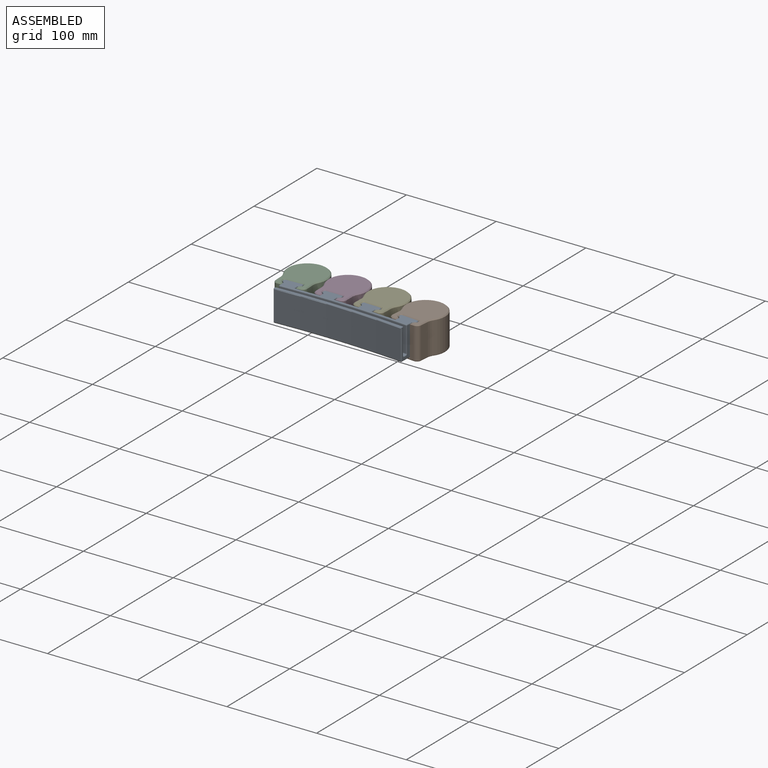
[diagram: assembled view]
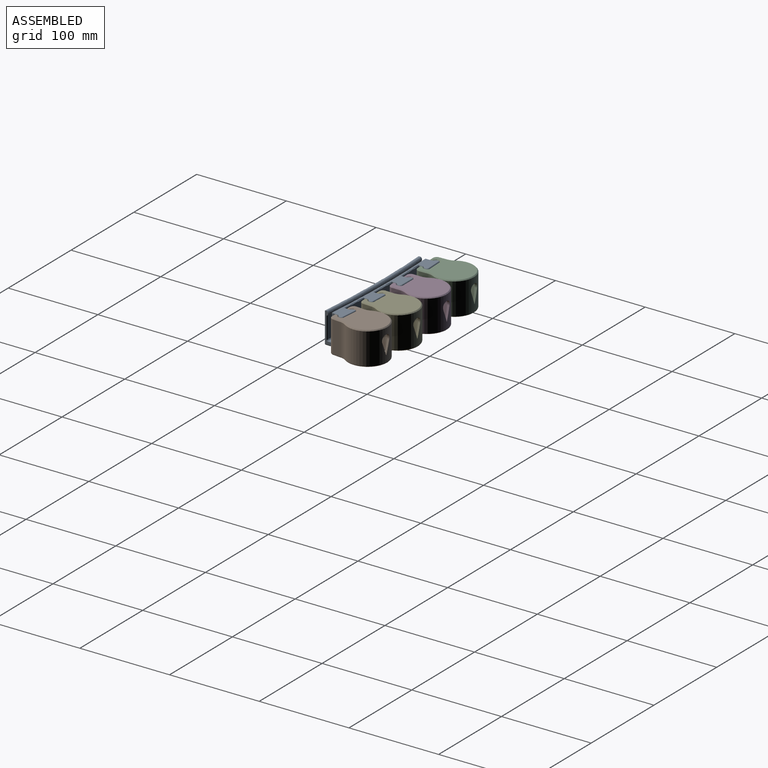
[diagram: assembled view, second angle]
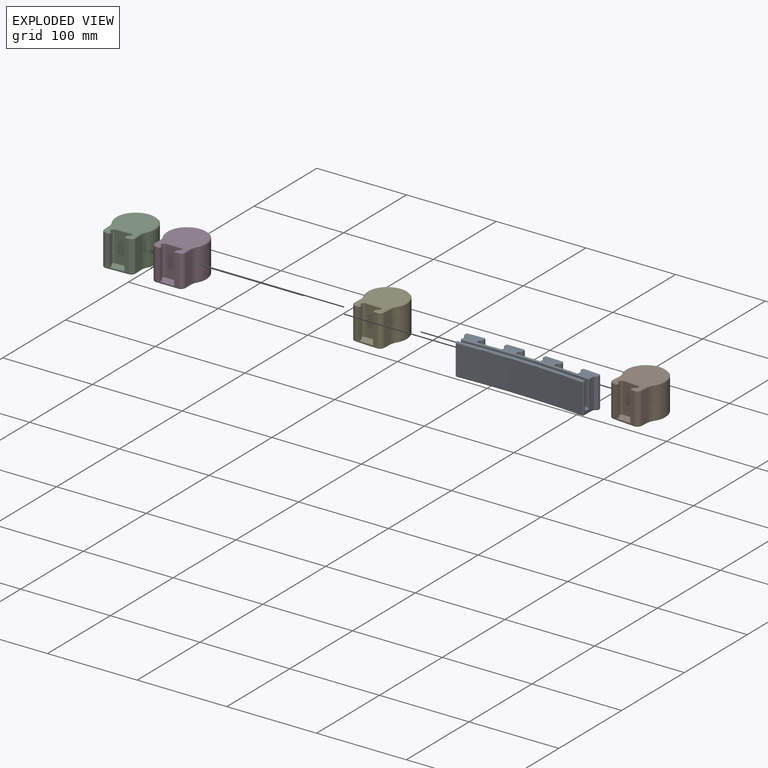
[diagram: exploded view]
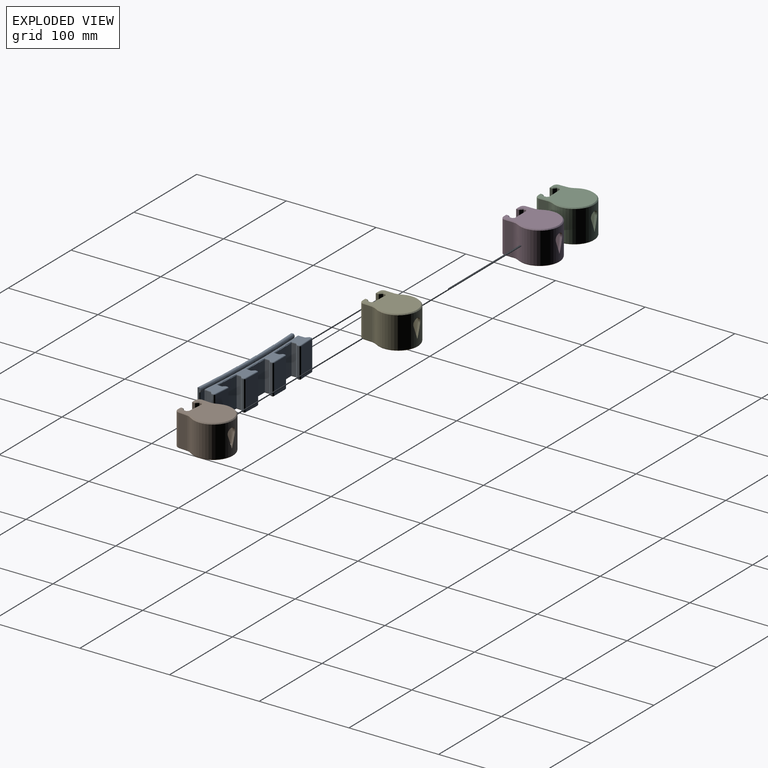
[diagram: exploded view, second angle]
ASSEMBLY  parts=5 mates=4
PART A: 151 faces, bbox 152x25.1x35 mm
  f0: cylinder r=1019mm len=33mm, axis (0,0,-1), area 916.9mm2, adj f33,f41,f91,f147
  f1: cylinder r=1019mm len=33mm, axis (0,0,-1), area 918.5mm2, adj f14,f42,f71,f127
  f2: cylinder r=1019mm len=33mm, axis (0,0,-1), area 918.5mm2, adj f24,f32,f72,f128
  f3: plane 143x5.53mm, normal (0,0,1), area 429.4mm2, adj f93,f97,f98,f99
  f4: plane 34x9.95mm, normal (1,0,0), area 125.4mm2, adj f10,f12,f13,f15,f51,f92,f95,f97
  f5: plane 34x9.95mm, normal (-1,0,0), area 129.7mm2, adj f10,f13,f23,f52,f94,f96,f99,f101
  f6: cylinder r=1008mm len=142.86mm, axis (0,0,-1), area 4718.3mm2, adj f50,f148,f149,f150
  f7: plane 149.93x22.96mm, normal (0,0,-1), area 1985.7mm2, adj f50,f51,f52,f53,f54,f55,f56,f57
  f8: cylinder r=1016mm len=142.86mm, axis (0,0,-1), area 4003.4mm2, adj f98,f102,f103,f104
  f9: plane 149.93x14.94mm, normal (0,0,1), area 840.8mm2, adj f103,f107,f108,f109,f110,f111,f112,f113
  f10: plane 145.02x4.63mm, normal (0,0,1), area 290.2mm2, adj f4,f5,f13,f148,f149,f150
  f11: cylinder r=1011mm len=143.14mm, axis (0,0,-1), area 3473.1mm2, adj f13,f92,f93,f94
  f12: plane 4.76x1.28mm, normal (0.99,-0.14,0), area 4.4mm2, adj f4,f13
  f13: bspline ~146.72x6.45mm, area 820.3mm2, adj f4,f5,f10,f11,f12,f92,f94
  f14: plane 33x4.99mm, normal (-1,0.06,0), area 165mm2, adj f1,f22,f69,f125
  f15: plane 33x4.99mm, normal (1,-0.06,0), area 165mm2, adj f4,f16,f53,f109
  f16: plane 33x3.01mm, normal (0.66,-0.75,0), area 132.2mm2, adj f15,f17,f55,f111
  f17: plane 33x2.61mm, normal (1,-0.06,0), area 86.3mm2, adj f16,f18,f57,f113
  f18: plane 33x1.11mm, normal (0.75,0.66,0), area 48.6mm2, adj f17,f19,f59,f115
  f19: plane 33x18.96mm, normal (0.06,1,0), area 627mm2, adj f18,f20,f61,f117
  f20: plane 33x1.11mm, normal (-0.66,0.75,0), area 48.6mm2, adj f19,f21,f63,f119
  f21: plane 33x2.61mm, normal (-1,0.06,0), area 86.3mm2, adj f20,f22,f65,f121
  f22: plane 33x3.01mm, normal (-0.75,-0.66,0), area 132.2mm2, adj f14,f21,f67,f123
  f23: plane 33x4.99mm, normal (-1,-0.06,0), area 165mm2, adj f5,f31,f54,f110
  f24: plane 33x4.99mm, normal (1,0.06,0), area 165mm2, adj f2,f25,f70,f126
  f25: plane 33x3.01mm, normal (0.75,-0.66,0), area 132.2mm2, adj f24,f26,f68,f124
  f26: plane 33x2.61mm, normal (1,0.06,0), area 86.3mm2, adj f25,f27,f66,f122
  f27: plane 33x1.11mm, normal (0.66,0.75,0), area 48.6mm2, adj f26,f28,f64,f120
  f28: plane 33x18.96mm, normal (-0.06,1,0), area 627mm2, adj f27,f29,f62,f118
  f29: plane 33x1.11mm, normal (-0.75,0.66,0), area 48.6mm2, adj f28,f30,f60,f116
  f30: plane 33x2.61mm, normal (-1,-0.06,0), area 86.3mm2, adj f29,f31,f58,f114
  f31: plane 33x3.01mm, normal (-0.66,-0.75,0), area 132.2mm2, adj f23,f30,f56,f112
  f32: plane 33x5mm, normal (-1,-0.02,0), area 165mm2, adj f2,f40,f74,f130
  f33: plane 33x5mm, normal (1,0.02,0), area 165mm2, adj f0,f34,f90,f146
  f34: plane 33x2.89mm, normal (0.72,-0.69,0), area 132.2mm2, adj f33,f35,f88,f144
  f35: plane 33x2.62mm, normal (1,0.02,0), area 86.3mm2, adj f34,f36,f86,f142
  f36: plane 33x1.06mm, normal (0.69,0.72,0), area 48.6mm2, adj f35,f37,f84,f140
  f37: plane 33x19mm, normal (-0.02,1,0), area 627mm2, adj f36,f38,f82,f138
  f38: plane 33x1.06mm, normal (-0.72,0.69,0), area 48.6mm2, adj f37,f39,f80,f136
  f39: plane 33x2.62mm, normal (-1,-0.02,0), area 86.3mm2, adj f38,f40,f78,f134
  f40: plane 33x2.89mm, normal (-0.69,-0.72,0), area 132.2mm2, adj f32,f39,f76,f132
  f41: plane 33x5mm, normal (-1,0.02,0), area 165mm2, adj f0,f49,f89,f145
  f42: plane 33x5mm, normal (1,-0.02,0), area 165mm2, adj f1,f43,f73,f129
  f43: plane 33x2.89mm, normal (0.69,-0.72,0), area 132.2mm2, adj f42,f44,f75,f131
  f44: plane 33x2.62mm, normal (1,-0.02,0), area 86.3mm2, adj f43,f45,f77,f133
  f45: plane 33x1.06mm, normal (0.72,0.69,0), area 48.6mm2, adj f44,f46,f79,f135
  f46: plane 33x19mm, normal (0.02,1,0), area 627mm2, adj f45,f47,f81,f137
  f47: plane 33x1.06mm, normal (-0.69,0.72,0), area 48.6mm2, adj f46,f48,f83,f139
  f48: plane 33x2.62mm, normal (-1,0.02,0), area 86.3mm2, adj f47,f49,f85,f141
  f49: plane 33x2.89mm, normal (-0.72,-0.69,0), area 132.2mm2, adj f41,f48,f87,f143
  f50: cone r=1009mm half-angle=45deg, axis (0,0,-1), area 203.5mm2, adj f6,f7,f51,f52,f148,f149
  f51: plane 10.72x1mm, normal (0.71,0,-0.71), area 14.7mm2, adj f4,f7,f50,f53,f148
  f52: plane 10.72x1mm, normal (-0.71,0,-0.71), area 14.7mm2, adj f5,f7,f50,f54,f149
  f53: plane 5.47x1.32mm, normal (0.71,-0.04,-0.71), area 7.4mm2, adj f7,f15,f51,f55
  f54: plane 5.47x1.32mm, normal (-0.71,-0.04,-0.71), area 7.4mm2, adj f7,f23,f52,f56
  f55: plane 3.98x3.12mm, normal (0.47,-0.53,-0.71), area 5.7mm2, adj f7,f16,f53,f57
  f56: plane 3.98x3.12mm, normal (-0.47,-0.53,-0.71), area 5.7mm2, adj f7,f31,f54,f58
  f57: plane 2.61x1.14mm, normal (0.71,-0.04,-0.71), area 3.1mm2, adj f7,f17,f55,f59
  f58: plane 2.61x1.14mm, normal (-0.71,-0.04,-0.71), area 3.1mm2, adj f7,f30,f56,f60
  f59: plane 1.46x1.45mm, normal (0.53,0.47,-0.71), area 1.5mm2, adj f7,f18,f57,f61
  f60: plane 1.46x1.45mm, normal (-0.53,0.47,-0.71), area 1.5mm2, adj f7,f29,f58,f62
  f61: plane 18.96x2.18mm, normal (0.04,0.71,-0.71), area 26.3mm2, adj f7,f19,f59,f63
  f62: plane 18.96x2.18mm, normal (-0.04,0.71,-0.71), area 26.3mm2, adj f7,f28,f60,f64
  f63: plane 1.46x1.45mm, normal (-0.47,0.53,-0.71), area 1.5mm2, adj f7,f20,f61,f65
  f64: plane 1.46x1.45mm, normal (0.47,0.53,-0.71), area 1.5mm2, adj f7,f27,f62,f66
  f65: plane 2.61x1.14mm, normal (-0.71,0.04,-0.71), area 3.1mm2, adj f7,f21,f63,f67
  f66: plane 2.61x1.14mm, normal (0.71,0.04,-0.71), area 3.1mm2, adj f7,f26,f64,f68
  f67: plane 3.67x3.36mm, normal (-0.53,-0.47,-0.71), area 5.7mm2, adj f7,f22,f65,f69
  f68: plane 3.67x3.36mm, normal (0.53,-0.47,-0.71), area 5.7mm2, adj f7,f25,f66,f70
  f69: plane 6.39x1.34mm, normal (-0.71,0.04,-0.71), area 8.1mm2, adj f7,f14,f67,f71
  f70: plane 6.39x1.34mm, normal (0.71,0.04,-0.71), area 8.1mm2, adj f7,f24,f68,f72
  f71: cone r=1019mm half-angle=45deg, axis (0,0,1), area 40.7mm2, adj f1,f7,f69,f73
  f72: cone r=1019mm half-angle=45deg, axis (0,0,1), area 40.7mm2, adj f2,f7,f70,f74
  f73: plane 6.41x1.13mm, normal (0.71,-0.01,-0.71), area 8.1mm2, adj f7,f42,f71,f75
  f74: plane 6.41x1.13mm, normal (-0.71,-0.01,-0.71), area 8.1mm2, adj f7,f32,f72,f76
  f75: plane 3.88x3.21mm, normal (0.49,-0.51,-0.71), area 5.7mm2, adj f7,f43,f73,f77
  f76: plane 3.88x3.21mm, normal (-0.49,-0.51,-0.71), area 5.7mm2, adj f7,f40,f74,f78
  f77: plane 2.62x1.05mm, normal (0.71,-0.01,-0.71), area 3.1mm2, adj f7,f44,f75,f79
  f78: plane 2.62x1.05mm, normal (-0.71,-0.01,-0.71), area 3.1mm2, adj f7,f39,f76,f80
  f79: plane 1.46x1.45mm, normal (0.51,0.49,-0.71), area 1.5mm2, adj f7,f45,f77,f81
  f80: plane 1.46x1.45mm, normal (-0.51,0.49,-0.71), area 1.5mm2, adj f7,f38,f78,f82
  f81: plane 19x1.39mm, normal (0.01,0.71,-0.71), area 26.3mm2, adj f7,f46,f79,f83
  f82: plane 19x1.39mm, normal (-0.01,0.71,-0.71), area 26.3mm2, adj f7,f37,f80,f84
  f83: plane 1.46x1.45mm, normal (-0.49,0.51,-0.71), area 1.5mm2, adj f7,f47,f81,f85
  f84: plane 1.46x1.45mm, normal (0.49,0.51,-0.71), area 1.5mm2, adj f7,f36,f82,f86
  f85: plane 2.62x1.05mm, normal (-0.71,0.01,-0.71), area 3.1mm2, adj f7,f48,f83,f87
  f86: plane 2.62x1.05mm, normal (0.71,0.01,-0.71), area 3.1mm2, adj f7,f35,f84,f88
  f87: plane 3.78x3.28mm, normal (-0.51,-0.49,-0.71), area 5.7mm2, adj f7,f49,f85,f89
  f88: plane 3.78x3.28mm, normal (0.51,-0.49,-0.71), area 5.7mm2, adj f7,f34,f86,f90
  f89: plane 6.41x1.11mm, normal (-0.71,0.01,-0.71), area 8.1mm2, adj f7,f41,f87,f91
  f90: plane 6.41x1.11mm, normal (0.71,0.01,-0.71), area 8.1mm2, adj f7,f33,f88,f91
  f91: cone r=1019mm half-angle=45deg, axis (0,0,1), area 40.7mm2, adj f0,f7,f89,f90
  f92: cylinder r=1mm len=24.24mm, axis (0,0,-1), area 36mm2, adj f4,f11,f13,f95
  f93: torus R=1012mm, axis (0,0,1), area 225mm2, adj f3,f11,f95,f96
  f94: cylinder r=1mm len=24.24mm, axis (0,0,-1), area 36mm2, adj f5,f11,f13,f96
  f95: bspline ~2.46x2.35mm, area 3.3mm2, adj f4,f92,f93,f97
  f96: bspline ~2.45x2.35mm, area 3.3mm2, adj f5,f93,f94,f99
  f97: cylinder r=1mm len=3.01mm, axis (0,-1,0), area 4.7mm2, adj f3,f4,f95,f100
  f98: torus R=1015mm, axis (0,0,1), area 224.7mm2, adj f3,f8,f100,f101
  f99: cylinder r=1mm len=3.01mm, axis (0,1,0), area 4.7mm2, adj f3,f5,f96,f101
  f100: bspline ~2.45x2.35mm, area 3.4mm2, adj f4,f97,f98,f102
  f101: bspline ~2.46x2.35mm, area 3.4mm2, adj f5,f98,f99,f104
  f102: cylinder r=1mm len=28mm, axis (0,0,-1), area 46mm2, adj f4,f8,f100,f105
  f103: torus R=1017mm, axis (0,0,1), area 224.7mm2, adj f8,f9,f105,f106
  f104: cylinder r=1mm len=28mm, axis (0,0,-1), area 46mm2, adj f5,f8,f101,f106
  f105: sphere r=1mm, area 1.6mm2, adj f102,f103,f107
  f106: sphere r=1mm, area 1.6mm2, adj f103,f104,f108
  f107: cylinder r=1mm len=1.97mm, axis (0,-1,0), area 3.1mm2, adj f4,f9,f105,f109
  f108: cylinder r=1mm len=1.97mm, axis (0,1,0), area 3.1mm2, adj f5,f9,f106,f110
  f109: cylinder r=1mm len=5.5mm, axis (-0.06,-1,0), area 8.1mm2, adj f9,f15,f107,f111
  f110: cylinder r=1mm len=5.5mm, axis (-0.06,1,0), area 8.1mm2, adj f9,f23,f108,f112
  f111: cylinder r=1mm len=3.98mm, axis (-0.75,-0.66,0), area 6.3mm2, adj f9,f16,f109,f113
  f112: cylinder r=1mm len=3.98mm, axis (-0.75,0.66,0), area 6.3mm2, adj f9,f31,f110,f114
  f113: cylinder r=1mm len=2.67mm, axis (-0.06,-1,0), area 3.6mm2, adj f9,f17,f111,f115
  f114: cylinder r=1mm len=2.67mm, axis (-0.06,1,0), area 3.6mm2, adj f9,f30,f112,f116
  f115: cylinder r=1mm len=1.77mm, axis (0.66,-0.75,0), area 1.8mm2, adj f9,f18,f113,f117
  f116: cylinder r=1mm len=1.77mm, axis (0.66,0.75,0), area 1.8mm2, adj f9,f29,f114,f118
  f117: cylinder r=1mm len=19.02mm, axis (1,-0.06,0), area 29.4mm2, adj f9,f19,f115,f119
  f118: cylinder r=1mm len=19.02mm, axis (1,0.06,0), area 29.4mm2, adj f9,f28,f116,f120
  f119: cylinder r=1mm len=1.77mm, axis (0.75,0.66,0), area 1.8mm2, adj f9,f20,f117,f121
  f120: cylinder r=1mm len=1.77mm, axis (0.75,-0.66,0), area 1.8mm2, adj f9,f27,f118,f122
  f121: cylinder r=1mm len=2.67mm, axis (0.06,1,0), area 3.6mm2, adj f9,f21,f119,f123
  f122: cylinder r=1mm len=2.67mm, axis (0.06,-1,0), area 3.6mm2, adj f9,f26,f120,f124
  f123: cylinder r=1mm len=3.98mm, axis (-0.66,0.75,0), area 6.3mm2, adj f9,f22,f121,f125
  f124: cylinder r=1mm len=3.98mm, axis (-0.66,-0.75,0), area 6.3mm2, adj f9,f25,f122,f126
  f125: cylinder r=1mm len=6.46mm, axis (0.06,1,0), area 8.7mm2, adj f9,f14,f123,f127
  f126: cylinder r=1mm len=6.46mm, axis (0.06,-1,0), area 8.7mm2, adj f9,f24,f124,f128
  f127: torus R=1018mm, axis (0,0,1), area 44.8mm2, adj f1,f9,f125,f129
  f128: torus R=1018mm, axis (0,0,1), area 44.8mm2, adj f2,f9,f126,f130
  f129: cylinder r=1mm len=6.43mm, axis (-0.02,-1,0), area 8.7mm2, adj f9,f42,f127,f131
  f130: cylinder r=1mm len=6.43mm, axis (-0.02,1,0), area 8.7mm2, adj f9,f32,f128,f132
  f131: cylinder r=1mm len=3.88mm, axis (-0.72,-0.69,0), area 6.3mm2, adj f9,f43,f129,f133
  f132: cylinder r=1mm len=3.88mm, axis (-0.72,0.69,0), area 6.3mm2, adj f9,f40,f130,f134
  f133: cylinder r=1mm len=2.64mm, axis (-0.02,-1,0), area 3.6mm2, adj f9,f44,f131,f135
  f134: cylinder r=1mm len=2.64mm, axis (-0.02,1,0), area 3.6mm2, adj f9,f39,f132,f136
  f135: cylinder r=1mm len=1.76mm, axis (0.69,-0.72,0), area 1.8mm2, adj f9,f45,f133,f137
  f136: cylinder r=1mm len=1.76mm, axis (0.69,0.72,0), area 1.8mm2, adj f9,f38,f134,f138
  f137: cylinder r=1mm len=19.02mm, axis (1,-0.02,0), area 29.4mm2, adj f9,f46,f135,f139
  f138: cylinder r=1mm len=19.02mm, axis (1,0.02,0), area 29.4mm2, adj f9,f37,f136,f140
  f139: cylinder r=1mm len=1.76mm, axis (0.72,0.69,0), area 1.8mm2, adj f9,f47,f137,f141
  f140: cylinder r=1mm len=1.76mm, axis (0.72,-0.69,0), area 1.8mm2, adj f9,f36,f138,f142
  f141: cylinder r=1mm len=2.64mm, axis (0.02,1,0), area 3.6mm2, adj f9,f48,f139,f143
  f142: cylinder r=1mm len=2.64mm, axis (0.02,-1,0), area 3.6mm2, adj f9,f35,f140,f144
  f143: cylinder r=1mm len=3.88mm, axis (-0.69,0.72,0), area 6.3mm2, adj f9,f49,f141,f145
  f144: cylinder r=1mm len=3.88mm, axis (-0.69,-0.72,0), area 6.3mm2, adj f9,f34,f142,f146
  f145: cylinder r=1mm len=6.43mm, axis (0.02,1,0), area 8.7mm2, adj f9,f41,f143,f147
  f146: cylinder r=1mm len=6.43mm, axis (0.02,-1,0), area 8.7mm2, adj f9,f33,f144,f147
  f147: torus R=1018mm, axis (0,0,1), area 44.8mm2, adj f0,f9,f145,f146
  f148: cylinder r=1mm len=34.32mm, axis (0,0,-1), area 55.4mm2, adj f4,f6,f10,f50,f51,f150
  f149: cylinder r=1mm len=34.32mm, axis (0,0,-1), area 55.4mm2, adj f5,f6,f10,f50,f52,f150
  f150: torus R=1009mm, axis (0,0,1), area 226.7mm2, adj f6,f10,f148,f149
PART B: 83 faces, bbox 47.8x56.2x37.1 mm
  f0: cylinder r=22.05mm len=44.1mm, axis (0,0,-1), area 3085.4mm2, adj f8,f9,f48,f71,f79,f80,f81,f82
  f1: cone r=19.05mm half-angle=2deg, axis (0,0,1), area 3477.8mm2, adj f21,f22,f50,f51,f52,f54,f55,f56
  f2: plane 35.01x18.84mm, normal (0,0,1), area 373.9mm2, adj f44,f45,f46,f47,f49,f50,f51,f52
  f3: plane 24.76x8.62mm, normal (0,1,0), area 202.8mm2, adj f28,f30,f31,f34,f35,f40
  f4: plane 51.92x42.1mm, normal (0,0,-1), area 1563.6mm2, adj f61,f62,f63,f64,f65,f66,f67,f68
  f5: plane 35x7.82mm, normal (-1,0,0), area 273.5mm2, adj f8,f45,f57,f75
  f6: plane 35x7.82mm, normal (1,0,0), area 273.5mm2, adj f9,f46,f59,f67
  f7: plane 35x24.53mm, normal (0,-1,0), area 314.1mm2, adj f10,f12,f13,f44,f57,f59,f63,f78
  f8: cylinder r=15mm len=35mm, axis (0,0,1), area 298.5mm2, adj f0,f5,f47,f73
  f9: cylinder r=15mm len=35mm, axis (0,0,-1), area 298.5mm2, adj f0,f6,f49,f69
  f10: plane 21.68x10.26mm, normal (0,0,-1), area 194mm2, adj f7,f11,f12,f13,f14,f15,f16,f17
  f11: plane 34x2.83mm, normal (0.71,0.71,0), area 136.2mm2, adj f10,f12,f18,f74
  f12: plane 34x3.35mm, normal (1,0,0), area 113.8mm2, adj f7,f10,f11,f76
  f13: plane 34x3.35mm, normal (-1,0,0), area 113.8mm2, adj f7,f10,f14,f61
  f14: plane 34x2.83mm, normal (-0.71,0.71,0), area 136.2mm2, adj f10,f13,f15,f62
  f15: plane 34x2.86mm, normal (-1,0,0), area 97.4mm2, adj f10,f14,f16,f64
  f16: plane 34x1.22mm, normal (-0.71,-0.71,0), area 58.5mm2, adj f10,f15,f17,f66
  f17: plane 34x19.25mm, normal (0,-1,0), area 654.4mm2, adj f10,f16,f19,f68
  f18: plane 34x2.86mm, normal (1,0,0), area 97.4mm2, adj f10,f11,f19,f72
  f19: plane 34x1.22mm, normal (0.71,-0.71,0), area 58.5mm2, adj f10,f17,f18,f70
  f20: plane 36.17x35.93mm, normal (0,0,1), area 1017.9mm2, adj f38,f40,f42,f54,f55,f56
  f21: plane 33.01x2.64mm, normal (-1,0,0), area 66.4mm2, adj f1,f23,f52,f56
  f22: plane 33.01x2.64mm, normal (1,0,0), area 66.4mm2, adj f1,f23,f51,f54
  f23: plane 33.99x14.05mm, normal (0,1,0), area 477.1mm2, adj f21,f22,f39,f41,f43,f53,f54,f56
  f24: plane 28.04x1.35mm, normal (-1,0,0.02), area 20.8mm2, adj f25,f34,f35,f36,f37,f39,f41
  f25: plane 29x10.62mm, normal (0,-1,0), area 292.9mm2, adj f24,f26,f27,f33,f37,f41
  f26: plane 28.04x1.35mm, normal (1,0,0.02), area 20.8mm2, adj f25,f30,f31,f32,f33,f41,f43
  f27: plane 7.64x0.84mm, normal (0,0,1), area 6.4mm2, adj f25,f29,f33,f37
  f28: cylinder r=3.71mm len=7.74mm, axis (-1,0,0), area 26.4mm2, adj f3,f29,f31,f35
  f29: cylinder r=1.4mm len=7.65mm, axis (-1,0,0), area 13.4mm2, adj f27,f28,f32,f36
  f30: cylinder r=1mm len=25.16mm, axis (-0.02,0,1), area 39.2mm2, adj f3,f26,f31,f42
  f31: bspline ~3.59x1.66mm, area 5mm2, adj f3,f26,f28,f30,f32
  f32: bspline ~1.33x1.26mm, area 2mm2, adj f26,f29,f31,f33
  f33: cylinder r=1mm len=1mm, axis (0,1,0), area 1.3mm2, adj f25,f26,f27,f32
  f34: cylinder r=1mm len=25.16mm, axis (0.02,0,1), area 39.2mm2, adj f3,f24,f35,f38
  f35: bspline ~3.59x1.66mm, area 5mm2, adj f3,f24,f28,f34,f36
  f36: bspline ~1.33x1.26mm, area 2mm2, adj f24,f29,f35,f37
  f37: cylinder r=1mm len=1mm, axis (0,1,0), area 1.3mm2, adj f24,f25,f27,f36
  f38: bspline ~2.35x2.35mm, area 3.3mm2, adj f20,f34,f39,f40,f54
  f39: cylinder r=1mm len=1.5mm, axis (0,-1,0), area 1.4mm2, adj f23,f24,f38,f41,f54
  f40: cylinder r=1mm len=8.62mm, axis (-1,0,0), area 13.5mm2, adj f3,f20,f38,f42
  f41: cylinder r=1mm len=12.24mm, axis (1,0,0), area 15.4mm2, adj f23,f24,f25,f26,f39,f43
  f42: bspline ~2.35x2.35mm, area 3.3mm2, adj f20,f30,f40,f43,f56
  f43: cylinder r=1mm len=1.5mm, axis (0,-1,0), area 1.4mm2, adj f23,f26,f41,f42,f56
  f44: cylinder r=1mm len=24.53mm, axis (-1,0,0), area 38.5mm2, adj f2,f7,f58,f60
  f45: cylinder r=1mm len=7.82mm, axis (0,1,0), area 12.3mm2, adj f2,f5,f47,f58
  f46: cylinder r=1mm len=7.82mm, axis (0,-1,0), area 12.3mm2, adj f2,f6,f49,f60
  f47: torus R=16mm, axis (0,0,1), area 13.6mm2, adj f2,f8,f45,f48,f50
  f48: torus R=21.05mm, axis (0,0,1), area 133.8mm2, adj f0,f47,f49,f50
  f49: torus R=16mm, axis (0,0,1), area 13.6mm2, adj f2,f9,f46,f48,f50
  f50: torus R=21.24mm, axis (0,0,1), area 166.9mm2, adj f1,f2,f47,f48,f49,f51,f52
  f51: cylinder r=1mm len=2.4mm, axis (0,-1,0), area 2.4mm2, adj f1,f2,f22,f50,f53
  f52: cylinder r=1mm len=2.4mm, axis (0,1,0), area 2.4mm2, adj f1,f2,f21,f50,f53
  f53: cylinder r=1mm len=16.05mm, axis (1,0,0), area 23.6mm2, adj f2,f23,f51,f52
  f54: cylinder r=1mm len=3.32mm, axis (0,1,0), area 4.2mm2, adj f1,f20,f22,f23,f38,f39,f55
  f55: torus R=18.08mm, axis (0,0,1), area 160mm2, adj f1,f20,f54,f56
  f56: cylinder r=1mm len=3.32mm, axis (0,-1,0), area 4.2mm2, adj f1,f20,f21,f23,f42,f43,f55
  f57: cylinder r=5mm len=35mm, axis (0,0,1), area 274.9mm2, adj f5,f7,f58,f77
  f58: torus R=4mm, axis (0,0,1), area 11.4mm2, adj f2,f44,f45,f57
  f59: cylinder r=5mm len=35mm, axis (0,0,-1), area 274.9mm2, adj f6,f7,f60,f65
  f60: torus R=4mm, axis (0,0,1), area 11.4mm2, adj f2,f44,f46,f59
  f61: plane 3.35x1mm, normal (-0.71,0,-0.71), area 3.7mm2, adj f4,f13,f62,f63
  f62: plane 3.83x3.25mm, normal (-0.5,0.5,-0.71), area 5.7mm2, adj f4,f14,f61,f64
  f63: plane 4.26x1mm, normal (0,-0.71,-0.71), area 5.3mm2, adj f4,f7,f61,f65
  f64: plane 3.69x1mm, normal (-0.71,0,-0.71), area 4.6mm2, adj f4,f15,f62,f66
  f65: cone r=4mm half-angle=45deg, axis (0,0,1), area 10mm2, adj f4,f59,f63,f67
  f66: plane 2.22x2.22mm, normal (-0.5,-0.5,-0.71), area 3mm2, adj f4,f16,f64,f68
  f67: plane 7.82x1mm, normal (0.71,0,-0.71), area 11mm2, adj f4,f6,f65,f69
  f68: plane 20.08x1mm, normal (0,-0.71,-0.71), area 27.8mm2, adj f4,f17,f66,f70
  f69: cone r=16mm half-angle=45deg, axis (0,0,-1), area 12.4mm2, adj f4,f9,f67,f71
  f70: plane 2.22x2.22mm, normal (0.5,-0.5,-0.71), area 3mm2, adj f4,f19,f68,f72
  f71: cone r=22.05mm half-angle=45deg, axis (0,0,1), area 127.1mm2, adj f0,f4,f69,f73
  f72: plane 3.69x1mm, normal (0.71,0,-0.71), area 4.6mm2, adj f4,f18,f70,f74
  f73: cone r=16mm half-angle=45deg, axis (0,0,-1), area 12.4mm2, adj f4,f8,f71,f75
  f74: plane 3.83x3.25mm, normal (0.5,0.5,-0.71), area 5.7mm2, adj f4,f11,f72,f76
  f75: plane 7.82x1mm, normal (-0.71,0,-0.71), area 11mm2, adj f4,f5,f73,f77
  f76: plane 3.35x1mm, normal (0.71,0,-0.71), area 3.7mm2, adj f4,f12,f74,f78
  f77: cone r=4mm half-angle=45deg, axis (0,0,1), area 10mm2, adj f4,f57,f75,f78
  f78: plane 4.26x1mm, normal (0,-0.71,-0.71), area 5.3mm2, adj f4,f7,f76,f77
  f79: cylinder r=5.28mm len=10.56mm, axis (0,-1,0), area 53mm2, adj f0,f1,f80,f81
  f80: plane 13.59x4.79mm, normal (-0.94,0,-0.33), area 33.5mm2, adj f0,f1,f79,f82
  f81: plane 13.59x4.79mm, normal (0.94,0,-0.33), area 33.5mm2, adj f0,f1,f79,f82
  f82: cylinder r=0.3mm len=2.09mm, axis (0,-1,0), area 1.5mm2, adj f0,f1,f80,f81
PART C: same geometry as B
PART D: same geometry as B
PART E: same geometry as B
PLACE A rot(axis=(0,0,-1),1.2deg) t=(193.89,-21.48,-37.56)mm
PLACE B rot(axis=(-0.04,-1,0),180deg) t=(261.59,13.91,-4.56)mm
PLACE C rot(axis=(0.02,-1,0),180deg) t=(127.76,16.75,-4.56)mm
PLACE D rot(axis=(0,-1,0),180deg) t=(172.41,17.7,-4.56)mm
PLACE E rot(axis=(-0.02,-1,0),180deg) t=(217.01,16.75,-4.56)mm
MATE slider C.f10 <-> A.f7  axis (0,0,-1) through (128.84,-8.79,-37.56)mm
MATE fastened A.f7 <-> D.f10  axis (0,0,-1) through (172.41,-7.86,-37.56)mm
MATE fastened E.f10 <-> A.f7  axis (0,0,-1) through (215.93,-8.78,-37.56)mm
MATE fastened B.f10 <-> A.f7  axis (0,0,-1) through (259.42,-11.55,-37.56)mm
